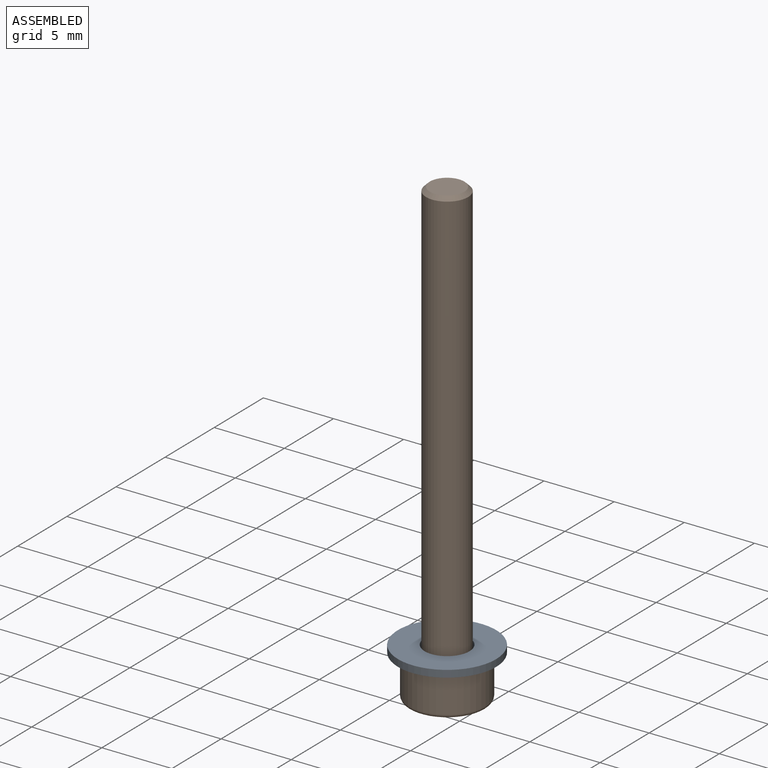
[diagram: assembled view]
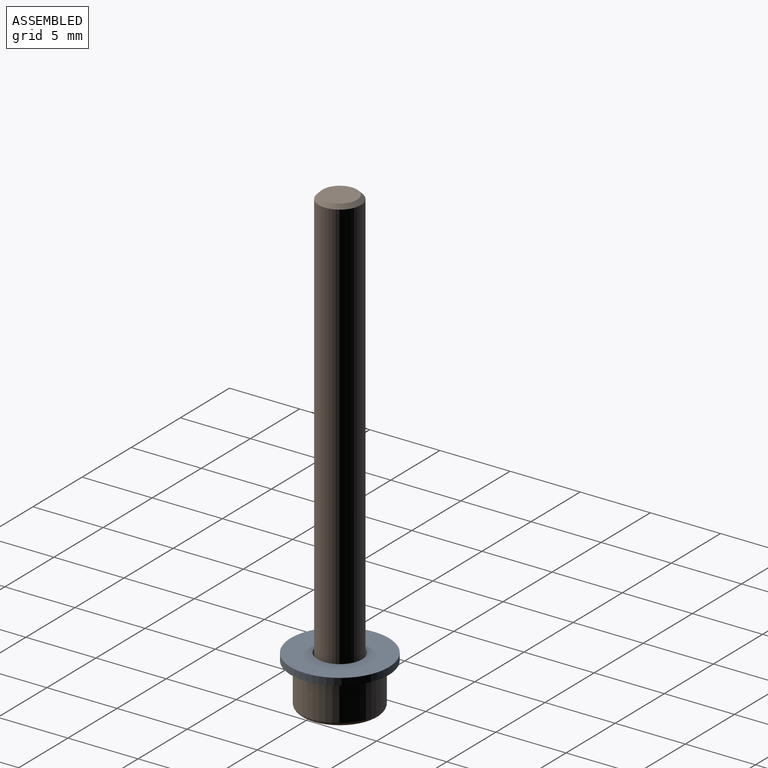
[diagram: assembled view, second angle]
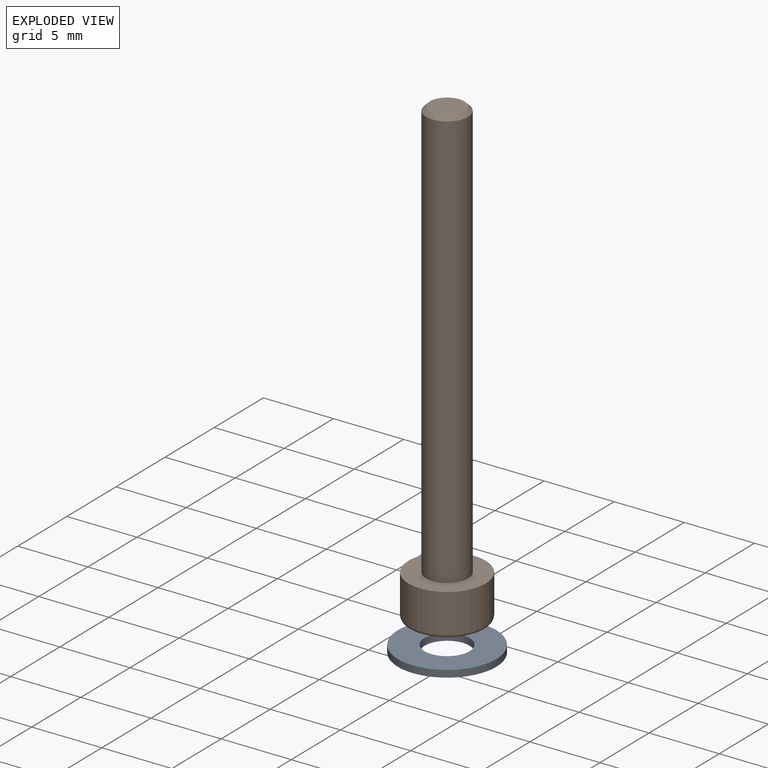
[diagram: exploded view]
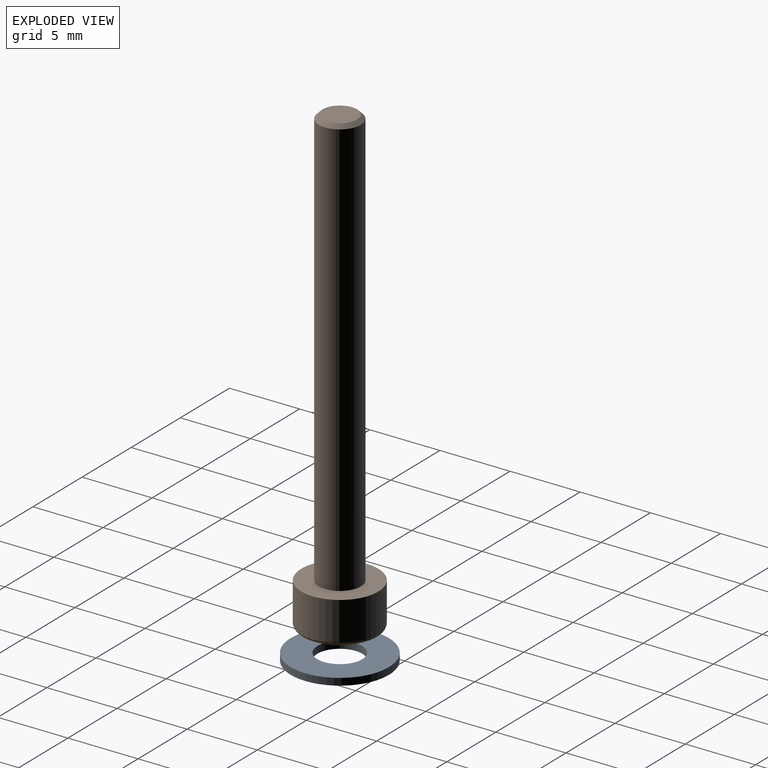
[diagram: exploded view, second angle]
ASSEMBLY  parts=2 mates=2
PART A: 4 faces, bbox 7x7x0.5 mm
  f0: cylinder r=1.6mm len=3.2mm, axis (0,0,-1), area 5mm2, adj f2,f3
  f1: cylinder r=3.5mm len=7mm, axis (0,0,-1), area 11mm2, adj f2,f3
  f2: plane 7x7mm, normal (0,0,1), area 30.4mm2, adj f0,f1
  f3: plane 7x7mm, normal (0,0,-1), area 30.4mm2, adj f0,f1
PART B: 14 faces, bbox 6x6x33 mm
  f0: plane 4.95x4.95mm, normal (0,0,-1), area 13.5mm2, adj f3,f4,f5,f6,f7,f8,f9
  f1: cylinder r=2.75mm len=5.5mm, axis (0,0,1), area 47.1mm2, adj f2,f3
  f2: plane 5.5x5.5mm, normal (0,0,1), area 16.7mm2, adj f1,f11
  f3: torus R=2.48mm, axis (0,0,-1), area 7.2mm2, adj f0,f1
  f4: plane 1.5x1.49mm, normal (-1,0,0), area 2.2mm2, adj f0,f5,f9,f10
  f5: plane 1.5x1.29mm, normal (-0.5,-0.87,0), area 2.2mm2, adj f0,f4,f6,f10
  f6: plane 1.5x1.29mm, normal (0.5,-0.87,0), area 2.2mm2, adj f0,f5,f7,f10
  f7: plane 1.5x1.49mm, normal (1,0,0), area 2.2mm2, adj f0,f6,f8,f10
  f8: plane 1.5x1.29mm, normal (0.5,0.87,0), area 2.2mm2, adj f0,f7,f9,f10
  f9: plane 1.5x1.29mm, normal (-0.5,0.87,0), area 2.2mm2, adj f0,f4,f8,f10
  f10: plane 2.98x2.58mm, normal (0,0,-1), area 5.8mm2, adj f4,f5,f6,f7,f8,f9
  f11: cylinder r=1.5mm len=29.73mm, axis (0,0,-1), area 280.2mm2, adj f2,f13
  f12: plane 2.46x2.46mm, normal (0,0,1), area 4.7mm2, adj f13
  f13: cone r=1.23mm half-angle=45deg, axis (0,0,-1), area 3.3mm2, adj f11,f12
PLACE A t=(73.28,51.18,-51.42)mm
PLACE B t=(-16.72,41.18,-51.42)mm
MATE cylindrical A.f0 <-> B.f1  axis (0,0,-1) through (63.28,41.18,-51.17)mm
MATE planar A.f0 <-> B.f1  axis (0,0,-1) through (63.28,41.18,-51.42)mm
